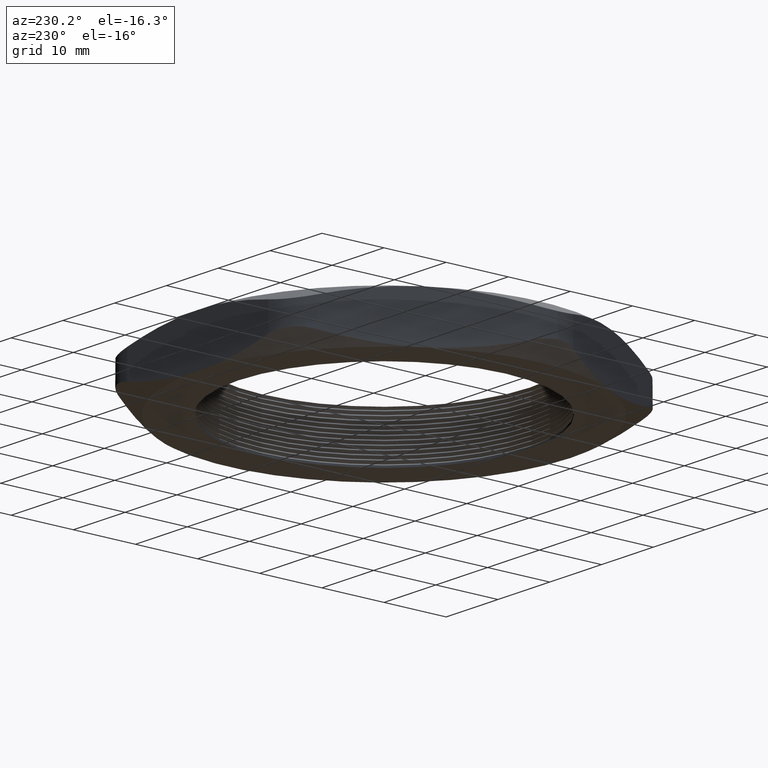
[diagram: clean part render]
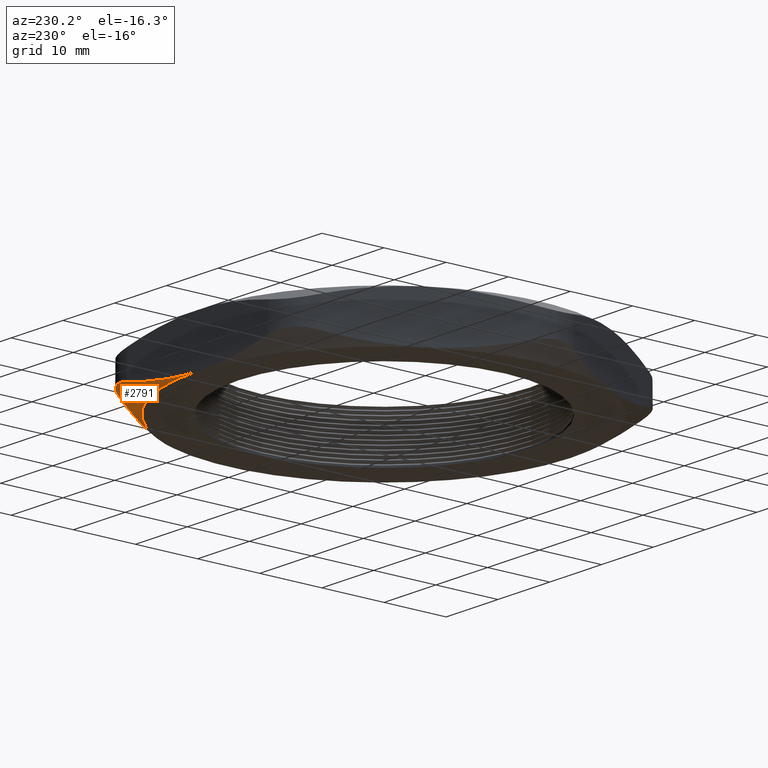
[diagram: same view with one face highlighted and labeled with its STEP entity id]
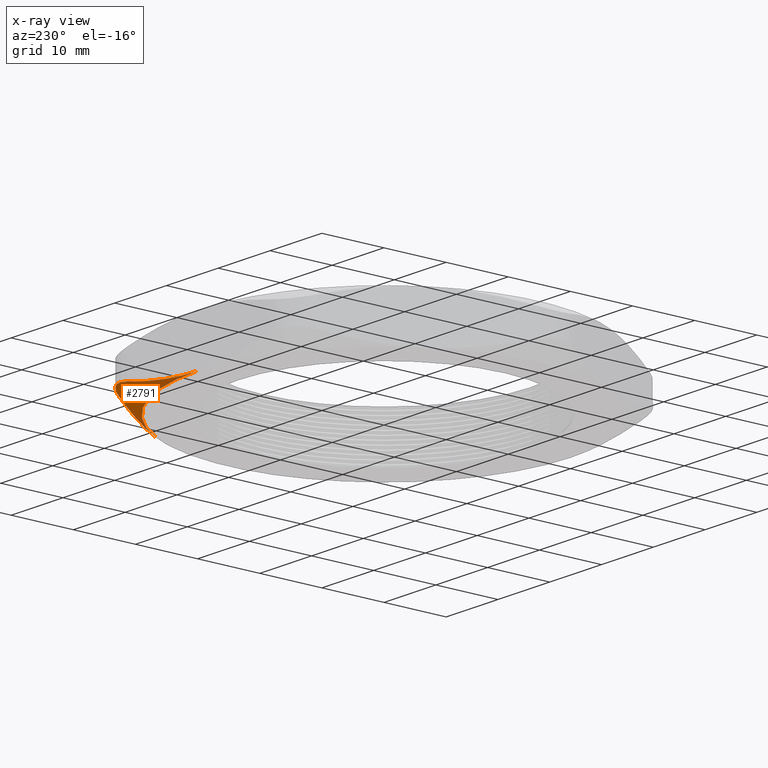
[diagram: x-ray of the same camera — body ghosted, the highlighted face saturated]
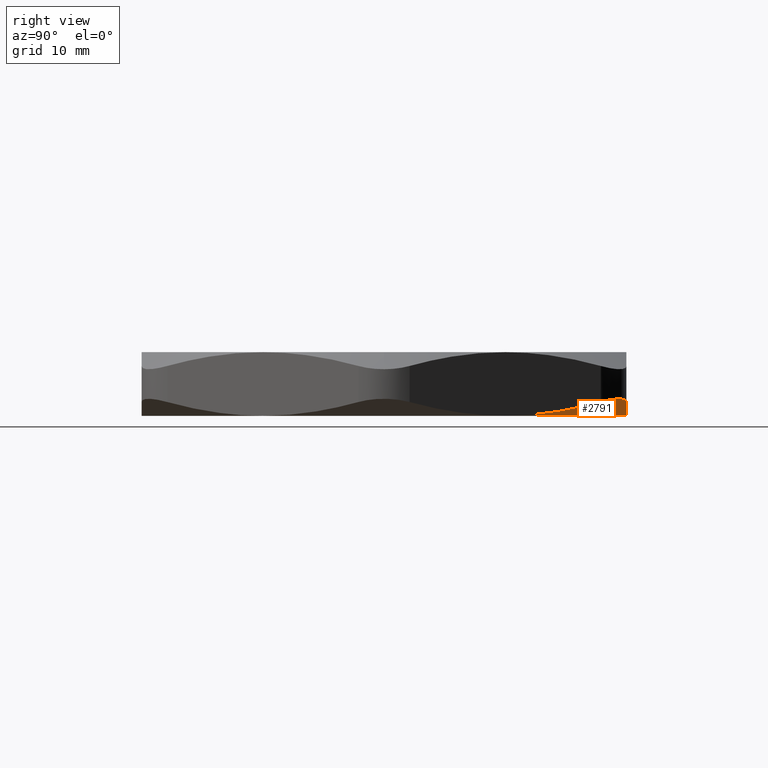
[diagram: same view with one face highlighted and labeled with its STEP entity id]
A machine part, auxiliary view. The second image highlights one B-rep face of the part: STEP entity #2791.
The next image is the same camera in x-ray: the body ghosted, the highlighted face saturated — about 0% of this face is hidden behind the body in this view.
A second angle (right view) of the same face is appended — the face is thin or edge-on in the first view.
In plain terms, the highlighted conical surface has half-angle 60 deg.
Its self-contained STEP definition (entity closure, byte-faithful):
#110 = ORIENTED_EDGE ( 'NONE', *, *, #2543, .T. ) ;
#142 = ORIENTED_EDGE ( 'NONE', *, *, #2565, .F. ) ;
#1274 = CARTESIAN_POINT ( 'NONE',  ( 0.5369357503463523300, 1.180000000000000200, 0.06721404586569516800 ) ) ;
#1275 = CARTESIAN_POINT ( 'NONE',  ( 0.4496078843158087300, 1.180000000000000600, 0.04633217327873812000 ) ) ;
#1276 = CARTESIAN_POINT ( 'NONE',  ( 0.3612328827273920700, 1.180000000000000200, 0.02941530187158129800 ) ) ;
#1277 = CARTESIAN_POINT ( 'NONE',  ( 0.2490155983969230300, 1.180000000000000200, 0.01489006772400660600 ) ) ;
#1278 = CARTESIAN_POINT ( 'NONE',  ( 0.2264847364175539800, 1.180000000000000200, 0.01231598222481033000 ) ) ;
#1279 = CARTESIAN_POINT ( 'NONE',  ( 0.1812379093706509000, 1.180000000000000400, 0.007868708027638671200 ) ) ;
#1280 = CARTESIAN_POINT ( 'NONE',  ( 0.1584856043575893500, 1.180000000000000400, 0.005994061912163429200 ) ) ;
#1281 = CARTESIAN_POINT ( 'NONE',  ( 0.09040044257329518700, 1.180000000000000600, 0.001500169657130180300 ) ) ;
#1282 = CARTESIAN_POINT ( 'NONE',  ( 0.04513680144237911700, 1.180000000000000200, -3.811648262644351500E-017 ) ) ;
#1283 = CARTESIAN_POINT ( 'NONE',  ( -1.182924880895401000E-016, 1.180000000000000200, 0.0000000000000000000 ) ) ;
#1285 = B_SPLINE_CURVE_WITH_KNOTS ( 'NONE', 3,
 ( #1283, #1282, #1281, #1280, #1279, #1278, #1277, #1276, #1275, #1274 ),
 .UNSPECIFIED., .F., .F.,
 ( 4, 2, 2, 2, 4 ),
 ( 0.04919183310818577700, 0.05262236379501852900, 0.05433762913843490100, 0.05605289448185128000, 0.06291395585551677600 ),
 .UNSPECIFIED. ) ;
#1293 = CARTESIAN_POINT ( 'NONE',  ( 0.5369357503463523300, 1.180000000000000200, 0.06721404586569516800 ) ) ;
#1504 = CARTESIAN_POINT ( 'NONE',  ( 1.021909976465637900, 0.5899999999999999700, 0.0000000000000000000 ) ) ;
#1505 = CARTESIAN_POINT ( 'NONE',  ( 0.9763607710639467000, 0.6688935380001205200, 4.535294520731686100E-017 ) ) ;
#1506 = CARTESIAN_POINT ( 'NONE',  ( 0.9312536539912960000, 0.7470213565529086900, 0.006155447746287119400 ) ) ;
#1507 = CARTESIAN_POINT ( 'NONE',  ( 0.8418140550371721000, 0.9019352861500359300, 0.02925203046129725900 ) ) ;
#1508 = CARTESIAN_POINT ( 'NONE',  ( 0.7974787547506385600, 0.9787262788151341900, 0.04615392317019730700 ) ) ;
#1509 = CARTESIAN_POINT ( 'NONE',  ( 0.7534421012924620300, 1.055000000000000200, 0.06721404586569522400 ) ) ;
#1510 = CARTESIAN_POINT ( 'NONE',  ( 0.7534421012924620300, 1.055000000000000200, 0.06721404586569522400 ) ) ;
#1511 = B_SPLINE_CURVE_WITH_KNOTS ( 'NONE', 3,
 ( #1509, #1508, #1507, #1506, #1505, #1504 ),
 .UNSPECIFIED., .F., .F.,
 ( 4, 2, 4 ),
 ( 0.003767047510153076000, 0.01063822244227695000, 0.01750939737440082200 ),
 .UNSPECIFIED. ) ;
#1556 = CARTESIAN_POINT ( 'NONE',  ( 1.021909976465637900, 0.5899999999999999700, 0.0000000000000000000 ) ) ;
#1559 = DIRECTION ( 'NONE',  ( -1.000000000000000000, 0.0000000000000000000, 0.0000000000000000000 ) ) ;
#1560 = DIRECTION ( 'NONE',  ( 0.0000000000000000000, 0.0000000000000000000, -1.000000000000000000 ) ) ;
#1561 = CARTESIAN_POINT ( 'NONE',  ( 0.0000000000000000000, 0.0000000000000000000, 0.0000000000000000000 ) ) ;
#1562 = AXIS2_PLACEMENT_3D ( 'NONE', #1561, #1560, #1559 ) ;
#1563 = CIRCLE ( 'NONE', #1562, 1.180000000000000200 ) ;
#1604 = CARTESIAN_POINT ( 'NONE',  ( -1.182924880895401000E-016, 1.180000000000000200, 0.0000000000000000000 ) ) ;
#2021 = B_SPLINE_CURVE_WITH_KNOTS ( 'NONE', 3,
 ( #2077, #2076, #2075, #2074, #2073, #2072, #2071, #2070, #2069, #2068, #2067, #2066, #2065, #2064 ),
 .UNSPECIFIED., .F., .F.,
 ( 4, 2, 2, 2, 2, 2, 4 ),
 ( 1.748223473168675600E-018, 0.001669271586080338100, 0.002503907379120502400, 0.003338543172160667000, 0.004173178965200831200, 0.005007814758240995400, 0.006677086344321324500 ),
 .UNSPECIFIED. ) ;
#2022 = DIRECTION ( 'NONE',  ( -1.000000000000000000, 0.0000000000000000000, 0.0000000000000000000 ) ) ;
#2023 = DIRECTION ( 'NONE',  ( 0.0000000000000000000, 0.0000000000000000000, 1.000000000000000000 ) ) ;
#2024 = CARTESIAN_POINT ( 'NONE',  ( 0.0000000000000000000, 0.0000000000000000000, 0.0000000000000000000 ) ) ;
#2039 = AXIS2_PLACEMENT_3D ( 'NONE', #2024, #2023, #2022 ) ;
#2041 = CONICAL_SURFACE ( 'NONE', #2039, 1.180000000000000200, 1.047197551196600100 ) ;
#2042 = FACE_OUTER_BOUND ( 'NONE', #2792, .T. ) ;
#2064 = CARTESIAN_POINT ( 'NONE',  ( 0.7534421012924620300, 1.055000000000000200, 0.06721404586569522400 ) ) ;
#2065 = CARTESIAN_POINT ( 'NONE',  ( 0.7426406280276907100, 1.073708700491182900, 0.07237975066804358500 ) ) ;
#2066 = CARTESIAN_POINT ( 'NONE',  ( 0.7292618027920843000, 1.091195033875054200, 0.07637160150552670100 ) ) ;
#2067 = CARTESIAN_POINT ( 'NONE',  ( 0.7062144216875249100, 1.114290582444687100, 0.08036293289793404500 ) ) ;
#2068 = CARTESIAN_POINT ( 'NONE',  ( 0.6980114634144942700, 1.121510473299437400, 0.08137240177445208300 ) ) ;
#2069 = CARTESIAN_POINT ( 'NONE',  ( 0.6805205885013937400, 1.134951313671749300, 0.08272984357175622300 ) ) ;
#2070 = CARTESIAN_POINT ( 'NONE',  ( 0.6712656668977318200, 1.141129690300332100, 0.08306829295617826300 ) ) ;
#2071 = CARTESIAN_POINT ( 'NONE',  ( 0.6522617552205258700, 1.152081483259583400, 0.08306013245854937400 ) ) ;
#2072 = CARTESIAN_POINT ( 'NONE',  ( 0.6424447765496059700, 1.156909620522817300, 0.08271979029129183900 ) ) ;
#2073 = CARTESIAN_POINT ( 'NONE',  ( 0.6221819559806115500, 1.165272639550648700, 0.08136507564973534400 ) ) ;
#2074 = CARTESIAN_POINT ( 'NONE',  ( 0.6116474606707506000, 1.168826090778309500, 0.08033741714334202700 ) ) ;
#2075 = CARTESIAN_POINT ( 'NONE',  ( 0.5799181923317215900, 1.177247800526430900, 0.07630181465680788100 ) ) ;
#2076 = CARTESIAN_POINT ( 'NONE',  ( 0.5585335758802325600, 1.180000000000000200, 0.07237852613360958000 ) ) ;
#2077 = CARTESIAN_POINT ( 'NONE',  ( 0.5369357503463523300, 1.180000000000000200, 0.06721404586569516800 ) ) ;
#2429 = VERTEX_POINT ( 'NONE', #1293 ) ;
#2435 = EDGE_CURVE ( 'NONE', #2575, #2429, #1285, .T. ) ;
#2543 = EDGE_CURVE ( 'NONE', #2544, #2568, #1511, .T. ) ;
#2544 = VERTEX_POINT ( 'NONE', #1510 ) ;
#2565 = EDGE_CURVE ( 'NONE', #2575, #2568, #1563, .T. ) ;
#2568 = VERTEX_POINT ( 'NONE', #1556 ) ;
#2575 = VERTEX_POINT ( 'NONE', #1604 ) ;
#2791 = ADVANCED_FACE ( 'NONE', ( #2042 ), #2041, .T. ) ;
#2792 = EDGE_LOOP ( 'NONE', ( #2793, #2794, #110, #142 ) ) ;
#2793 = ORIENTED_EDGE ( 'NONE', *, *, #2435, .T. ) ;
#2794 = ORIENTED_EDGE ( 'NONE', *, *, #2795, .T. ) ;
#2795 = EDGE_CURVE ( 'NONE', #2429, #2544, #2021, .T. ) ;